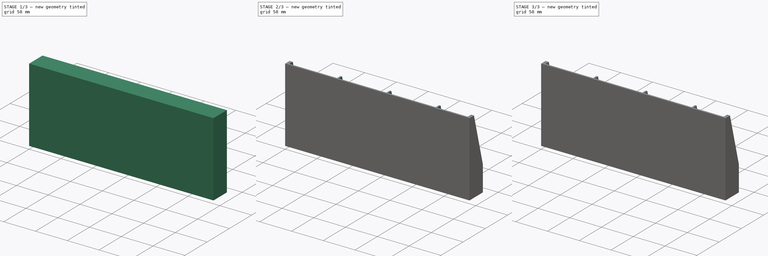
[diagram: build sequence overview — one tinted view per stage of 3, left to right]
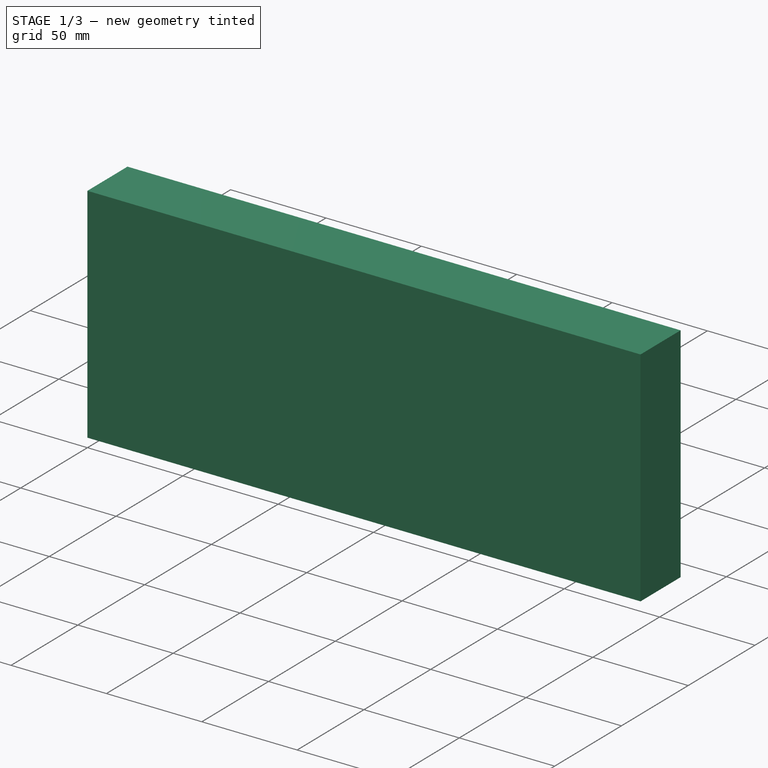
[diagram: stage 1 of 3 — iso view after this stage's code; geometry added in this stage tinted green]
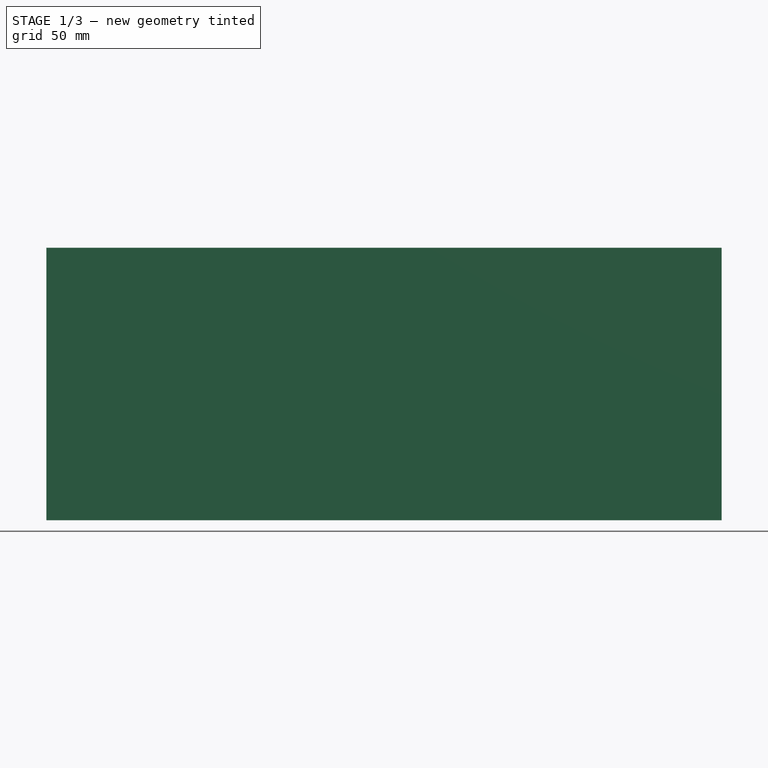
[diagram: stage 1 of 3 — front view after this stage's code; geometry added in this stage tinted green]
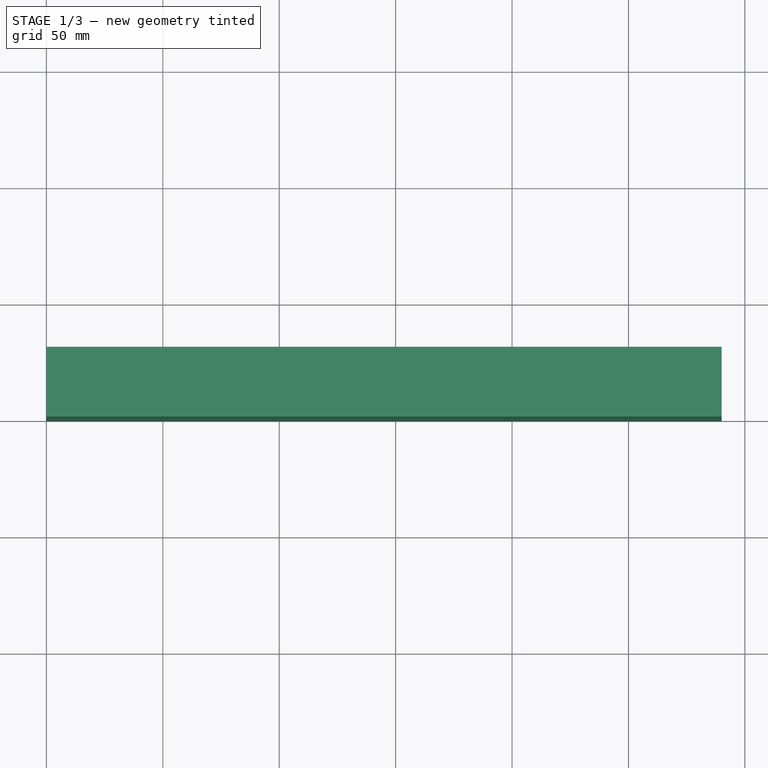
[diagram: stage 1 of 3 — top view after this stage's code; geometry added in this stage tinted green]
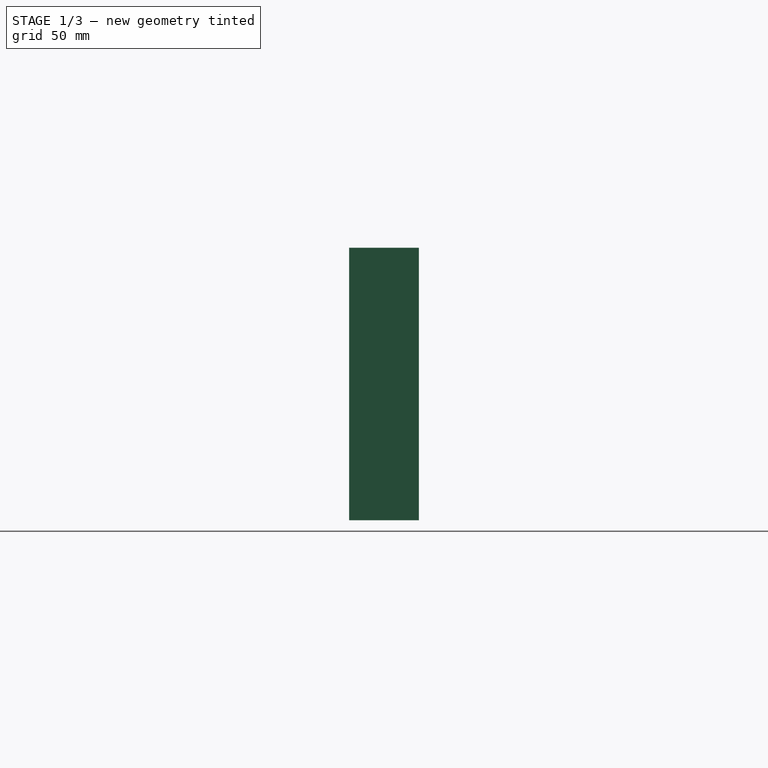
[diagram: stage 1 of 3 — right view after this stage's code; geometry added in this stage tinted green]
FCSTD DOCUMENT  (FreeCAD 1.0R39285 (Git))
Label: SupportEponge-v2
License: All rights reserved
LicenseURL: http://en.wikipedia.org/wiki/All_rights_reserved
objects: Sketcher::SketchObject×3, PartDesign::Pocket×3, PartDesign::LinearPattern×2, Part::Box×1, PartDesign::FeatureBase×1, PartDesign::MultiTransform×1, PartDesign::Body×1
note: 25 computed .brp shape members not serialized (recipe doc carries the construction recipe); baked Part::Feature solids carry a one-line shape summary decoded from their .brp

FEATURE [Part::Box] Box  label="Cube"
  AttacherType = Attacher::AttachEngine3D
  Height = 117
  Length = 290
  Width = 30
FEATURE [PartDesign::FeatureBase] BaseFeature
  BaseFeature = -> Box
  Suppressed = false
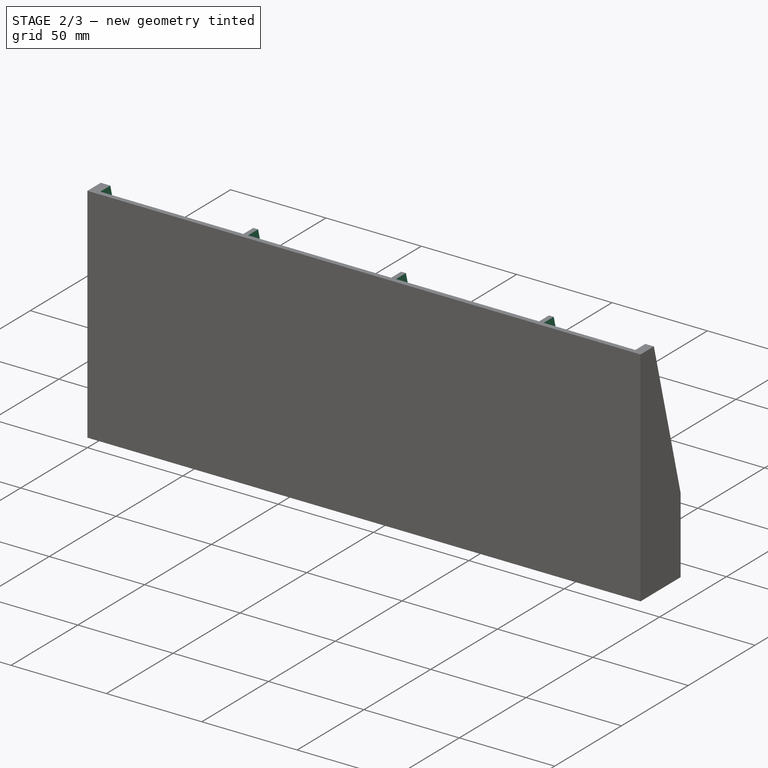
[diagram: stage 2 of 3 — iso view after this stage's code; geometry added in this stage tinted green]
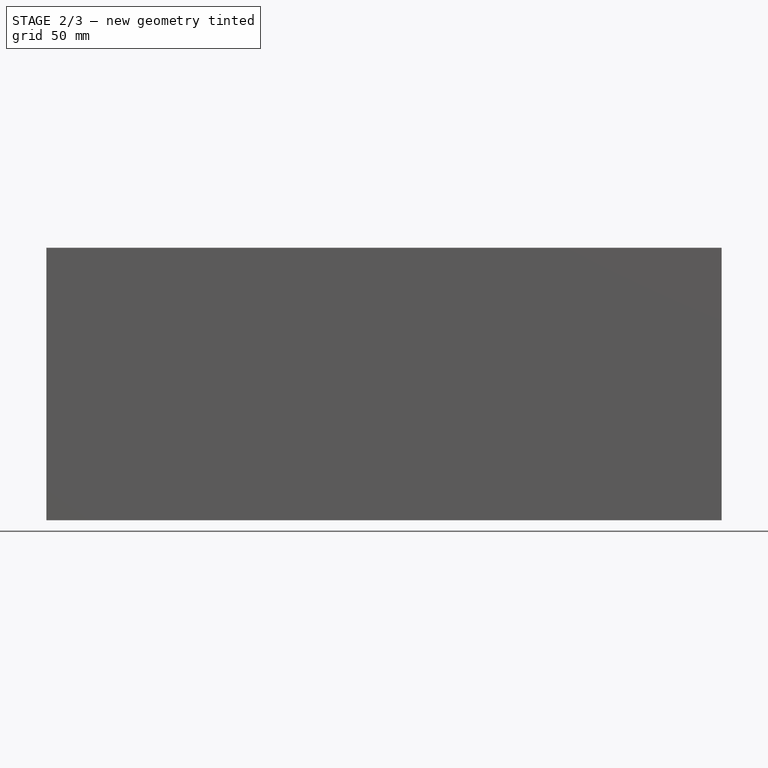
[diagram: stage 2 of 3 — front view after this stage's code; geometry added in this stage tinted green]
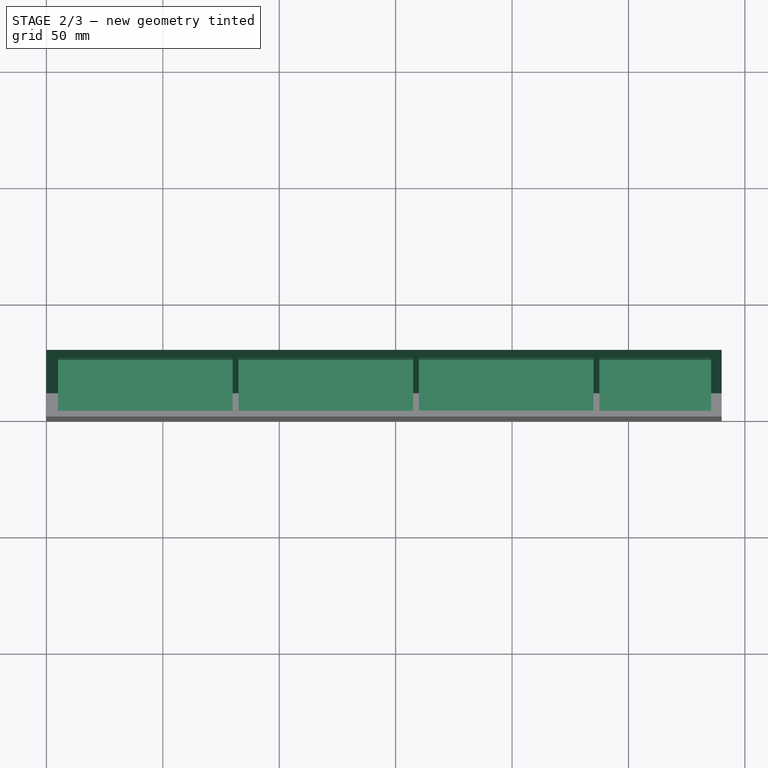
[diagram: stage 2 of 3 — top view after this stage's code; geometry added in this stage tinted green]
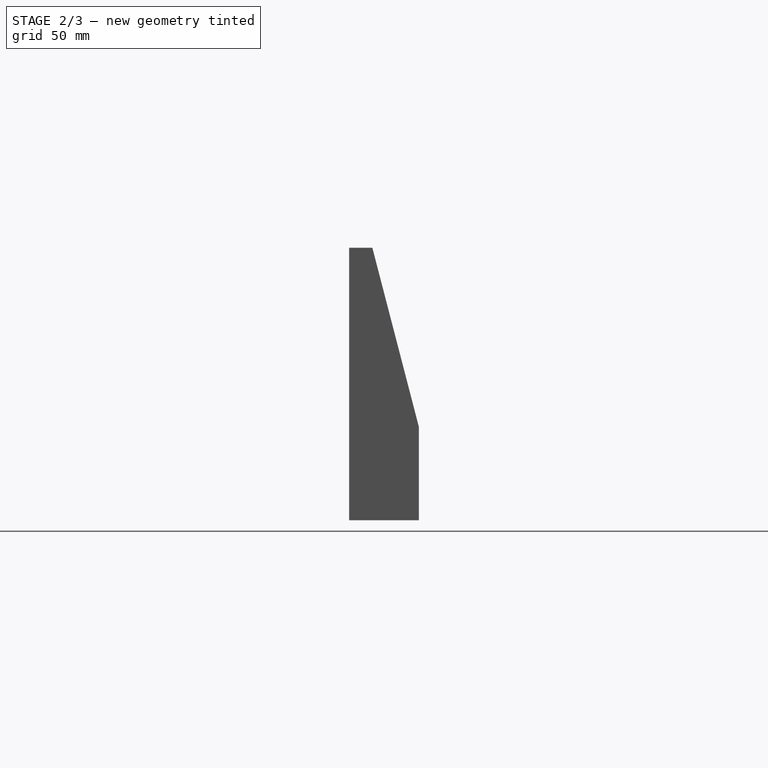
[diagram: stage 2 of 3 — right view after this stage's code; geometry added in this stage tinted green]
FEATURE [Sketcher::SketchObject] Sketch
  ArcFitTolerance = 0
  AttachmentSupport = -> [BaseFeature]
  FullyConstrained = false
  MakeInternals = false
  MapMode = 5
  Placement = pos=(0,0,117) rot=(0,0,1;0rad)
  sketch-geometry (16):
    g0: LineSegment StartX=5 StartY=26.3209 StartZ=0 EndX=80 EndY=26.3209 EndZ=0
    g1: LineSegment StartX=80 StartY=26.3209 StartZ=0 EndX=80 EndY=2.5 EndZ=0
    g2: LineSegment StartX=80 StartY=2.5 StartZ=0 EndX=5 EndY=2.5 EndZ=0
    g3: LineSegment StartX=5 StartY=2.5 StartZ=0 EndX=5 EndY=26.3209 EndZ=0
    g4: LineSegment StartX=82.5 StartY=26.3209 StartZ=0 EndX=157.5 EndY=26.3209 EndZ=0
    g5: LineSegment StartX=157.5 StartY=26.3209 StartZ=0 EndX=157.5 EndY=2.5 EndZ=0
    g6: LineSegment StartX=157.5 StartY=2.5 StartZ=0 EndX=82.5 EndY=2.5 EndZ=0
    g7: LineSegment StartX=82.5 StartY=2.5 StartZ=0 EndX=82.5 EndY=26.3209 EndZ=0
    g8: LineSegment StartX=160 StartY=26.3917 StartZ=0 EndX=235 EndY=26.3917 EndZ=0
    g9: LineSegment StartX=235 StartY=26.3917 StartZ=0 EndX=235 EndY=2.57071 EndZ=0
    g10: LineSegment StartX=235 StartY=2.57071 StartZ=0 EndX=160 EndY=2.57071 EndZ=0
    g11: LineSegment StartX=160 StartY=2.57071 StartZ=0 EndX=160 EndY=26.3917 EndZ=0
    g12: LineSegment StartX=237.5 StartY=26.3209 StartZ=0 EndX=237.5 EndY=2.5 EndZ=0
    g13: LineSegment StartX=237.5 StartY=2.5 StartZ=0 EndX=285.5 EndY=2.5 EndZ=0
    g14: LineSegment StartX=285.5 StartY=2.5 StartZ=0 EndX=285.5 EndY=26.3209 EndZ=0
    g15: LineSegment StartX=285.5 StartY=26.3209 StartZ=0 EndX=237.5 EndY=26.3209 EndZ=0
  constraints (46):
    c: Coincident(g0,g1)
    c: Coincident(g1,g2)
    c: Coincident(g2,g3)
    c: Coincident(g3,g0)
    c: Horizontal(g0)
    c: Horizontal(g2)
    c: Vertical(g1)
    c: Vertical(g3)
    c: DistanceY(g-1,g2) = 2.5
    c: DistanceX(g0,g0) = 75
    c: Coincident(g4,g5)
    c: Coincident(g5,g6)
    c: Coincident(g6,g7)
    c: Coincident(g7,g4)
    c: Horizontal(g4)
    c: Horizontal(g6)
    c: Vertical(g5)
    c: Vertical(g7)
    c: Coincident(g8,g9)
    c: Coincident(g9,g10)
    c: Coincident(g10,g11)
    c: Coincident(g11,g8)
    c: Horizontal(g8)
    c: Horizontal(g10)
    c: Vertical(g9)
    c: Vertical(g11)
    c: Equal(g0,g4)
    c: Equal(g4,g8)
    c: Equal(g7,g11)
    c: Equal(g11,g1)
    c: DistanceX(g0,g4) = 2.5
    c: DistanceX(g4,g8) = 2.5
    c: Coincident(g12,g13)
    c: Coincident(g13,g14)
    c: Coincident(g14,g15)
    c: Coincident(g15,g12)
    c: Vertical(g12)
    c: Vertical(g14)
    c: Horizontal(g13)
    c: Horizontal(g15)
    c: DistanceX(g8,g12) = 2.5
    c: DistanceX(g15,g15) = 48
    c: DistanceY(g-1,g12) = 2.5
    c: Equal(g7,g12)
    c: DistanceY(g0,g4) = 0
    c: DistanceX(g-1,g0) = 5
FEATURE [PartDesign::Pocket] Pocket
  BaseFeature = -> BaseFeature
  Direction = (0,0,-1)
  Length = 115.5
  Length2 = 100
  Profile = -> Sketch
  Suppressed = false
  Type = 0
FEATURE [Sketcher::SketchObject] Sketch001
  ArcFitTolerance = 0
  ExternalGeometry = -> [Pocket]
  FullyConstrained = false
  MakeInternals = false
  MapMode = 5
  Placement = pos=(314,0,0) rot=(0.57735,0.57735,0.57735;2.0944rad)
  sketch-geometry (3):
    g0: LineSegment StartX=10 StartY=117 StartZ=0 EndX=30 EndY=40 EndZ=0
    g1: LineSegment StartX=10 StartY=117 StartZ=0 EndX=40 EndY=120 EndZ=0
    g2: LineSegment StartX=40 StartY=120 StartZ=0 EndX=30 EndY=40 EndZ=0
  constraints (7):
    c: PointOnObject(g0,g-3)
    c: PointOnObject(g0,g-4)
    c: DistanceY(g-4,g0) = 40
    c: DistanceX(g-3,g0) = 10
    c: Coincident(g2,g1)
    c: Coincident(g1,g0)
    c: Coincident(g0,g2)
FEATURE [PartDesign::Pocket] Pocket001
  BaseFeature = -> Pocket
  Direction = (-1,0,0)
  Length = 350
  Length2 = 100
  Profile = -> Sketch001
  Suppressed = false
  Type = 0
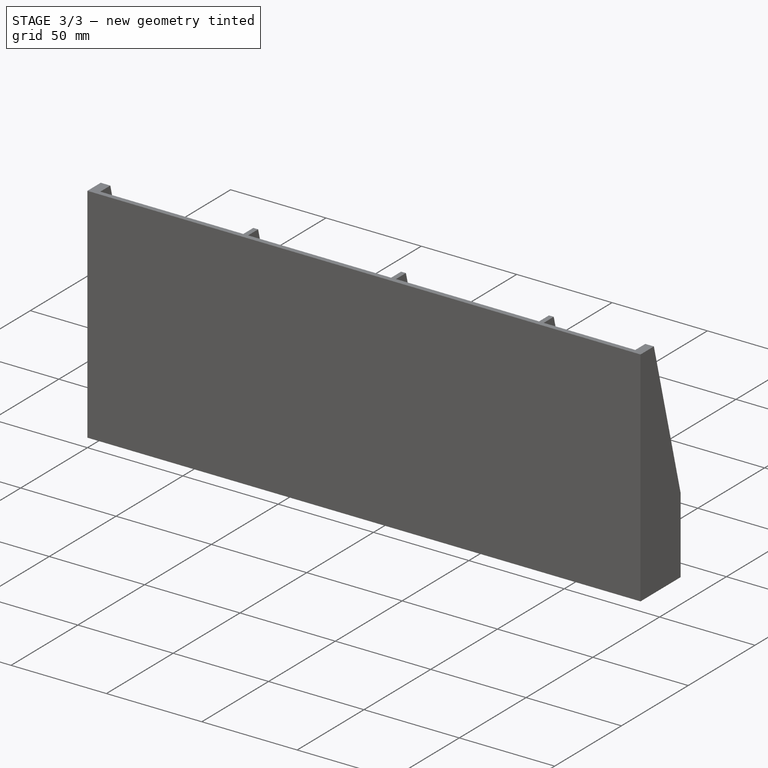
[diagram: stage 3 of 3 — iso view after this stage's code; geometry added in this stage tinted green]
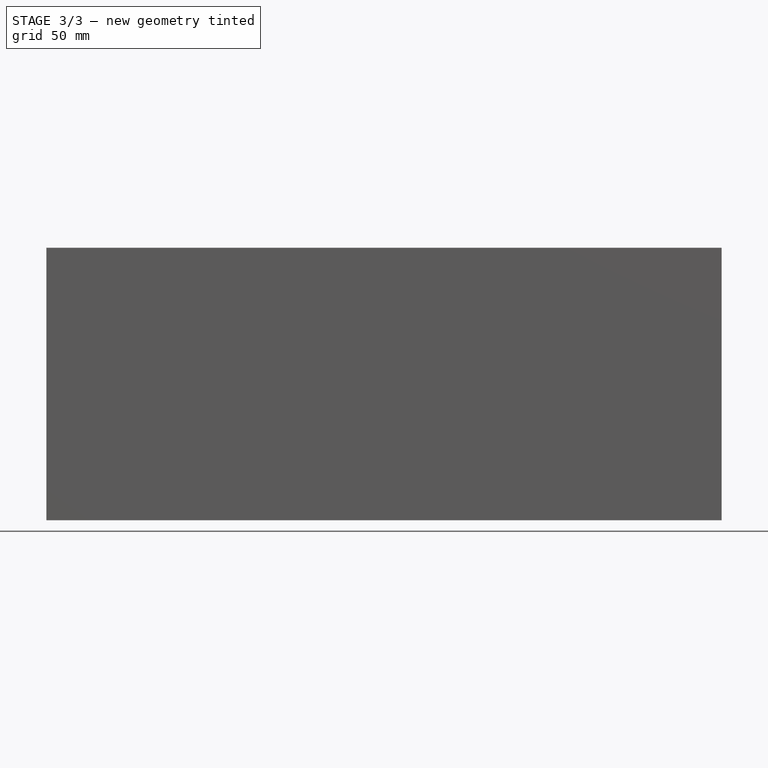
[diagram: stage 3 of 3 — front view after this stage's code; geometry added in this stage tinted green]
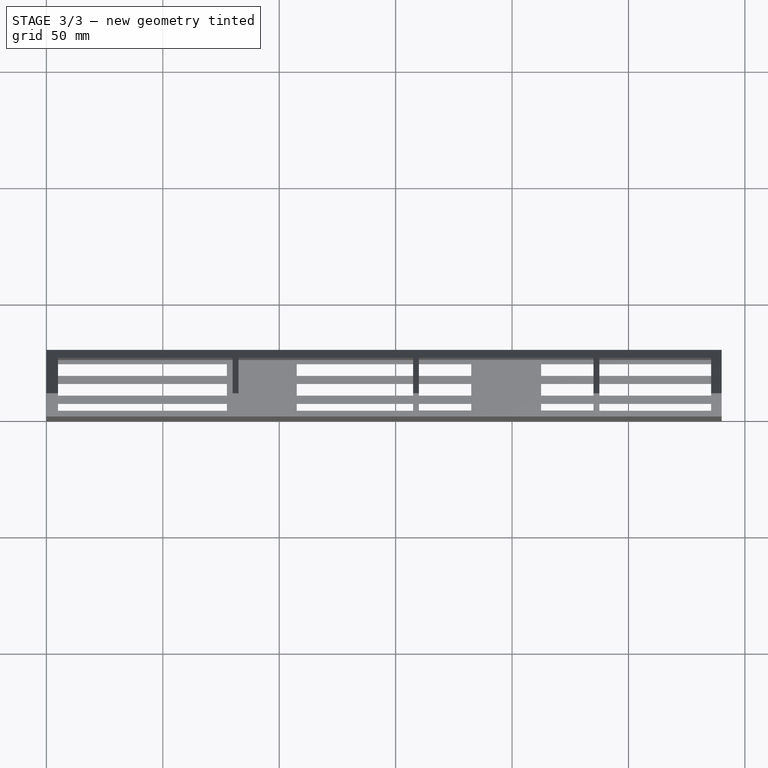
[diagram: stage 3 of 3 — top view after this stage's code; geometry added in this stage tinted green]
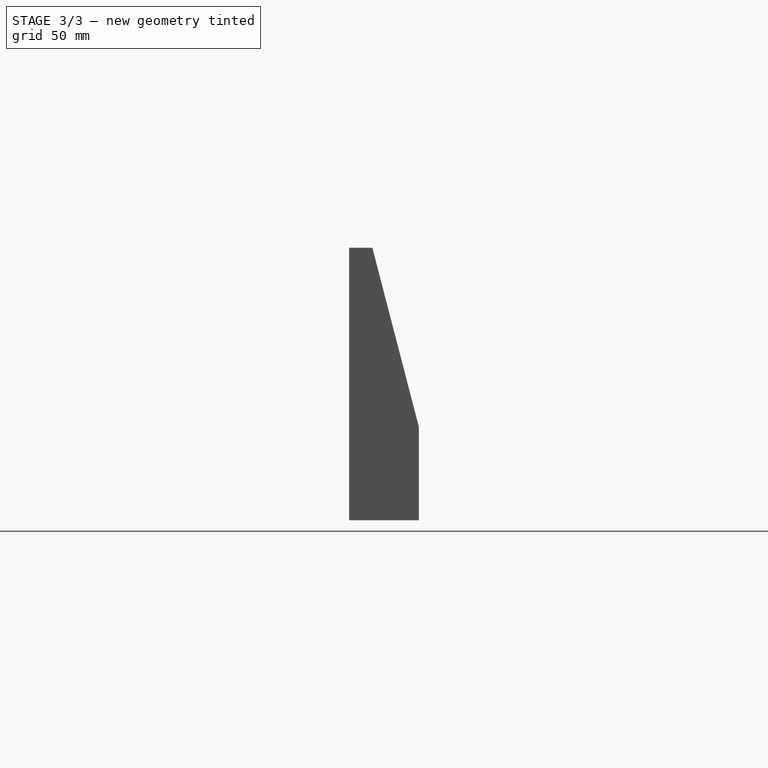
[diagram: stage 3 of 3 — right view after this stage's code; geometry added in this stage tinted green]
FEATURE [Sketcher::SketchObject] Sketch002
  ArcFitTolerance = 0
  AttachmentSupport = -> [Pocket001]
  FullyConstrained = true
  MakeInternals = false
  MapMode = 5
  Placement = pos=(0,0,0) rot=(1,0,0;3.14159rad)
  sketch-geometry (4):
    g0: LineSegment StartX=2.5 StartY=-2.5 StartZ=0 EndX=77.5 EndY=-2.5 EndZ=0
    g1: LineSegment StartX=77.5 StartY=-2.5 StartZ=0 EndX=77.5 EndY=-7.5 EndZ=0
    g2: LineSegment StartX=77.5 StartY=-7.5 StartZ=0 EndX=2.5 EndY=-7.5 EndZ=0
    g3: LineSegment StartX=2.5 StartY=-7.5 StartZ=0 EndX=2.5 EndY=-2.5 EndZ=0
  constraints (12):
    c: Coincident(g0,g1)
    c: Coincident(g1,g2)
    c: Coincident(g2,g3)
    c: Coincident(g3,g0)
    c: Horizontal(g0)
    c: Horizontal(g2)
    c: Vertical(g1)
    c: Vertical(g3)
    c: DistanceY(g0,g-1) = 2.5
    c: DistanceX(g0,g0) = 75
    c: DistanceY(g1,g1) = 5
    c: DistanceX(g-1,g0) = 2.5
FEATURE [PartDesign::Pocket] Pocket002
  BaseFeature = -> Pocket001
  Direction = (0,0,1)
  Length = 5
  Length2 = 100
  Profile = -> Sketch002
  Suppressed = false
  Type = 0
FEATURE [PartDesign::LinearPattern] LinearPattern001
  Direction = -> Sketch002 [H_Axis]
  Length = 210
  Mode = 0
  Occurrences = 3
  Offset = 105
  Suppressed = false
  TransformMode = 0
FEATURE [PartDesign::LinearPattern] LinearPattern002
  Direction = -> Sketch002 [V_Axis]
  Length = 17
  Mode = 0
  Occurrences = 3
  Offset = 8.5
  Reversed = true
  Suppressed = false
  TransformMode = 0
FEATURE [PartDesign::MultiTransform] MultiTransform
  BaseFeature = -> Pocket002
  Originals = -> [Pocket002]
  Suppressed = false
  TransformMode = 0
  Transformations = -> [LinearPattern001,LinearPattern002]
FEATURE [PartDesign::Body] Body
  AllowCompound = false
  BaseFeature = -> Box
  Group = -> [BaseFeature,Sketch,Pocket,Sketch001,Pocket001,Sketch002,Pocket002,MultiTransform,LinearPattern001,LinearPattern002]
  Origin = -> Origin
  Tip = -> MultiTransform
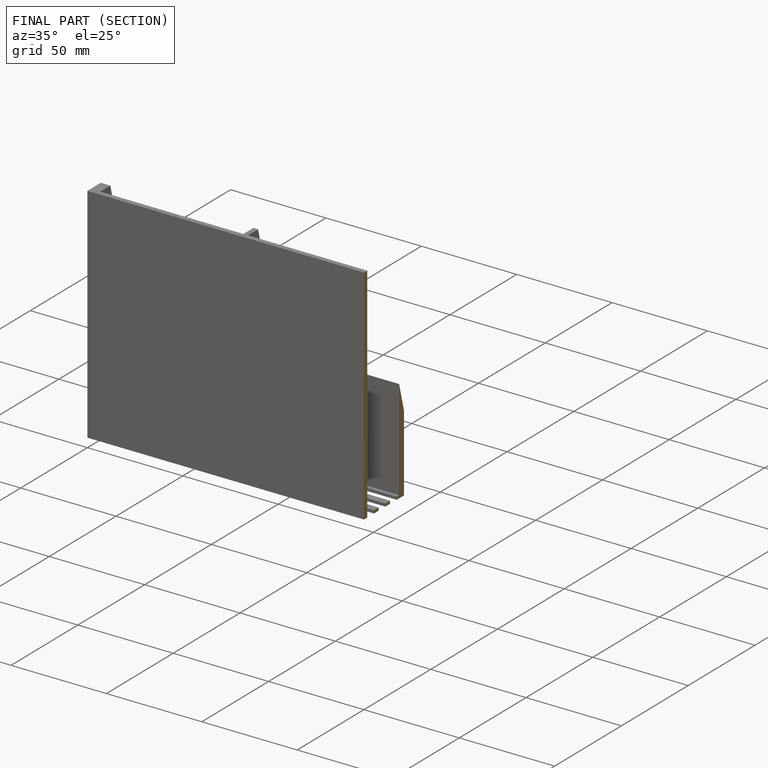
[diagram: finished part — half-section view (interior)]
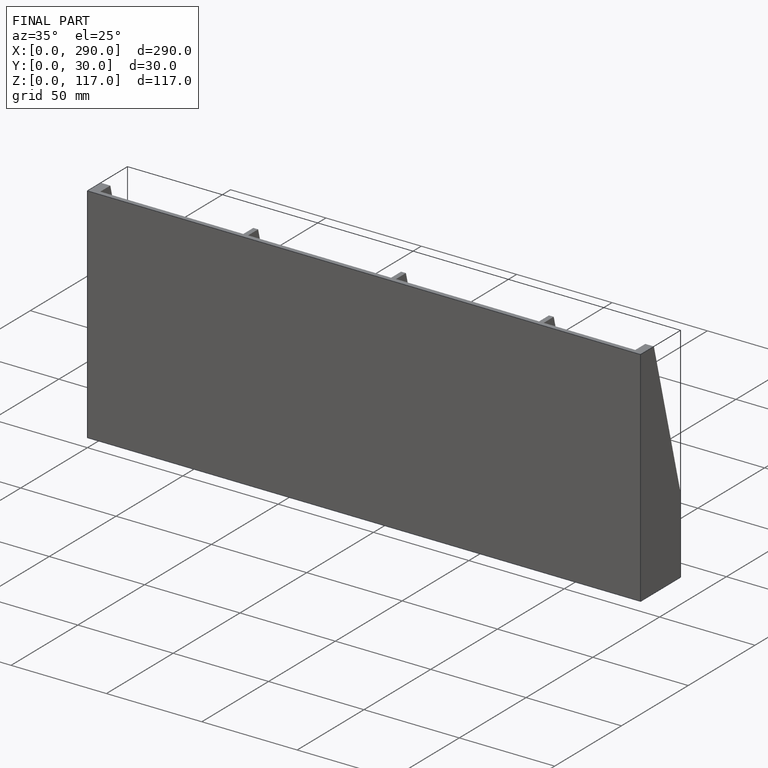
[diagram: finished part — iso view with bounding-box wireframe]
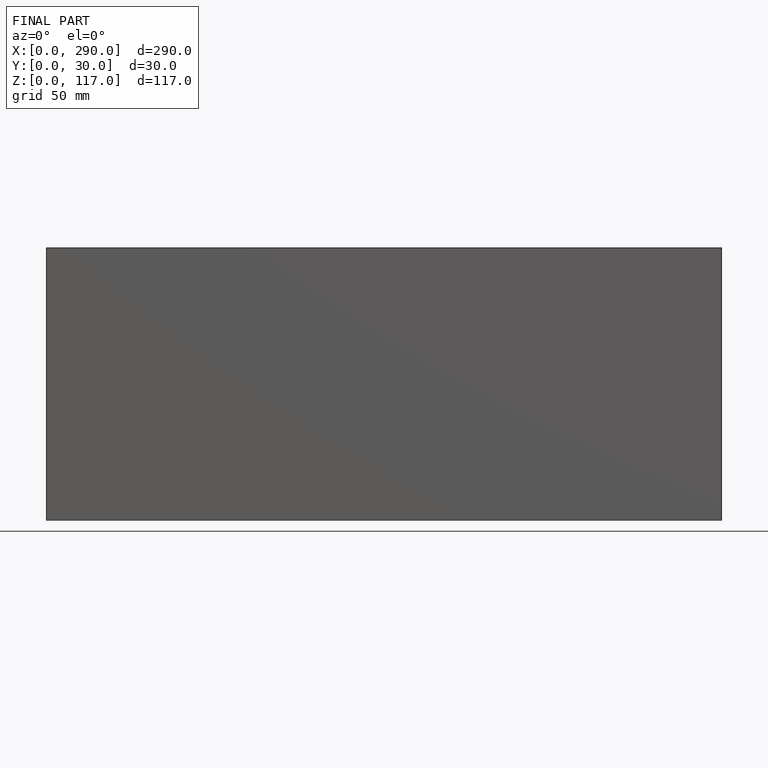
[diagram: finished part — front view with bounding-box wireframe]
